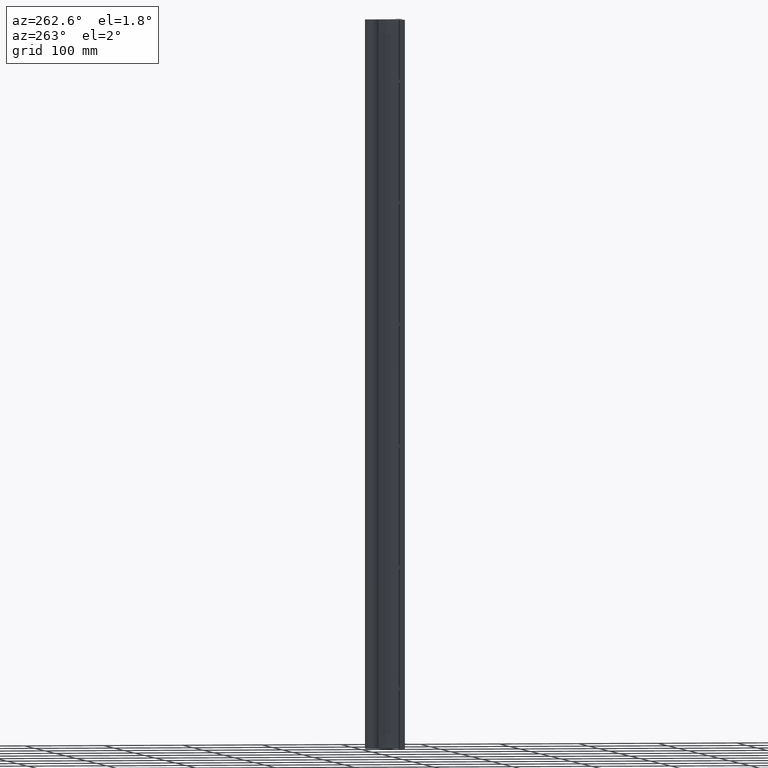
[diagram: clean part render]
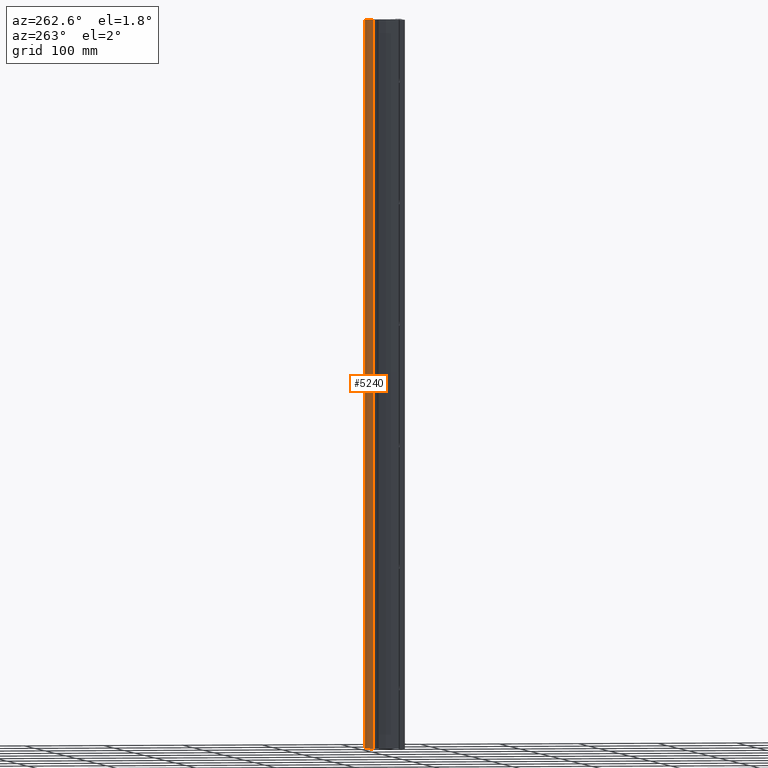
[diagram: same view with one face highlighted and labeled with its STEP entity id]
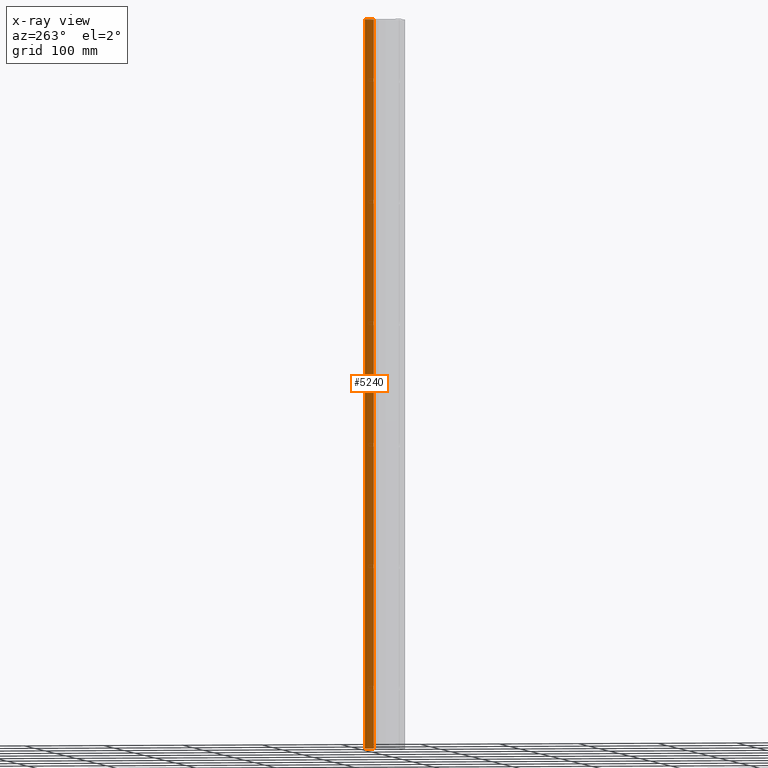
[diagram: x-ray of the same camera — body ghosted, the highlighted face saturated]
A machine part, auxiliary view. The second image highlights one B-rep face of the part: STEP entity #5240.
The next image is the same camera in x-ray: the body ghosted, the highlighted face saturated — about 0% of this face is hidden behind the body in this view.
In plain terms, the highlighted cylindrical surface (edge-blend (fillet) strip) has radius 9.525 mm, axis along (0, 0, 1).
Its self-contained STEP definition (entity closure, byte-faithful):
#247 = ORIENTED_EDGE ( 'NONE', *, *, #12765, .T. ) ;
#362 = AXIS2_PLACEMENT_3D ( 'NONE', #4755, #8929, #13127 ) ;
#557 = CYLINDRICAL_SURFACE ( 'NONE', #362, 0.3749999999999999445 ) ;
#1147 = CARTESIAN_POINT ( 'NONE',  ( -0.3749999999999999445, 1.500000000000000222, -36.00000000000000000 ) ) ;
#1665 = CARTESIAN_POINT ( 'NONE',  ( 0.000000000000000000, 1.500000000000000222, 0.000000000000000000 ) ) ;
#1823 = ORIENTED_EDGE ( 'NONE', *, *, #10084, .T. ) ;
#3675 = VERTEX_POINT ( 'NONE', #9440 ) ;
#4034 = CARTESIAN_POINT ( 'NONE',  ( -0.3749999999999999445, 1.500000000000000222, -36.00000000000000000 ) ) ;
#4062 = DIRECTION ( 'NONE',  ( 0.000000000000000000, 0.000000000000000000, 1.000000000000000000 ) ) ;
#4349 = CARTESIAN_POINT ( 'NONE',  ( 0.000000000000000000, 1.500000000000000222, -36.00000000000000000 ) ) ;
#4626 = FACE_OUTER_BOUND ( 'NONE', #13615, .T. ) ;
#4755 = CARTESIAN_POINT ( 'NONE',  ( 0.000000000000000000, 1.500000000000000222, -36.00000000000000000 ) ) ;
#5240 = ADVANCED_FACE ( 'NONE', ( #4626 ), #557, .T. ) ;
#5354 = DIRECTION ( 'NONE',  ( 0.000000000000000000, 0.000000000000000000, 1.000000000000000000 ) ) ;
#5470 = VECTOR ( 'NONE', #4062, 39.37007874015748143 ) ;
#5930 = VERTEX_POINT ( 'NONE', #11815 ) ;
#6104 = CARTESIAN_POINT ( 'NONE',  ( 0.3749999999999999445, 1.500000000000000222, -36.00000000000000000 ) ) ;
#6305 = ORIENTED_EDGE ( 'NONE', *, *, #8725, .F. ) ;
#6339 = EDGE_CURVE ( 'NONE', #7477, #3675, #11305, .T. ) ;
#7189 = ORIENTED_EDGE ( 'NONE', *, *, #6339, .F. ) ;
#7266 = LINE ( 'NONE', #1147, #12178 ) ;
#7477 = VERTEX_POINT ( 'NONE', #8544 ) ;
#8513 = DIRECTION ( 'NONE',  ( 0.000000000000000000, 0.000000000000000000, 1.000000000000000000 ) ) ;
#8544 = CARTESIAN_POINT ( 'NONE',  ( 0.3749999999999999445, 1.500000000000000222, -36.00000000000000000 ) ) ;
#8725 = EDGE_CURVE ( 'NONE', #3675, #5930, #11877, .T. ) ;
#8872 = DIRECTION ( 'NONE',  ( 1.000000000000000000, 0.000000000000000000, 0.000000000000000000 ) ) ;
#8929 = DIRECTION ( 'NONE',  ( 0.000000000000000000, 0.000000000000000000, 1.000000000000000000 ) ) ;
#9383 = VERTEX_POINT ( 'NONE', #4034 ) ;
#9440 = CARTESIAN_POINT ( 'NONE',  ( 0.3749999999999999445, 1.500000000000000222, 0.000000000000000000 ) ) ;
#10084 = EDGE_CURVE ( 'NONE', #9383, #5930, #7266, .T. ) ;
#10487 = CIRCLE ( 'NONE', #10914, 0.3749999999999999445 ) ;
#10914 = AXIS2_PLACEMENT_3D ( 'NONE', #4349, #8513, #11510 ) ;
#10992 = DIRECTION ( 'NONE',  ( 0.000000000000000000, 0.000000000000000000, 1.000000000000000000 ) ) ;
#11305 = LINE ( 'NONE', #6104, #5470 ) ;
#11510 = DIRECTION ( 'NONE',  ( 1.000000000000000000, 0.000000000000000000, 0.000000000000000000 ) ) ;
#11815 = CARTESIAN_POINT ( 'NONE',  ( -0.3749999999999999445, 1.500000000000000222, 0.000000000000000000 ) ) ;
#11877 = CIRCLE ( 'NONE', #12767, 0.3749999999999999445 ) ;
#12178 = VECTOR ( 'NONE', #5354, 39.37007874015748143 ) ;
#12765 = EDGE_CURVE ( 'NONE', #7477, #9383, #10487, .T. ) ;
#12767 = AXIS2_PLACEMENT_3D ( 'NONE', #1665, #10992, #8872 ) ;
#13127 = DIRECTION ( 'NONE',  ( 1.000000000000000000, 0.000000000000000000, 0.000000000000000000 ) ) ;
#13615 = EDGE_LOOP ( 'NONE', ( #247, #1823, #6305, #7189 ) ) ;